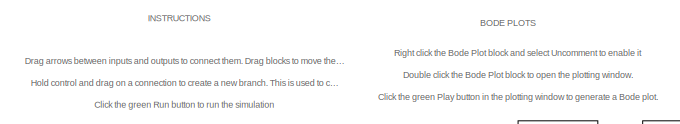
[diagram: root canvas - part 1/4, top left region]
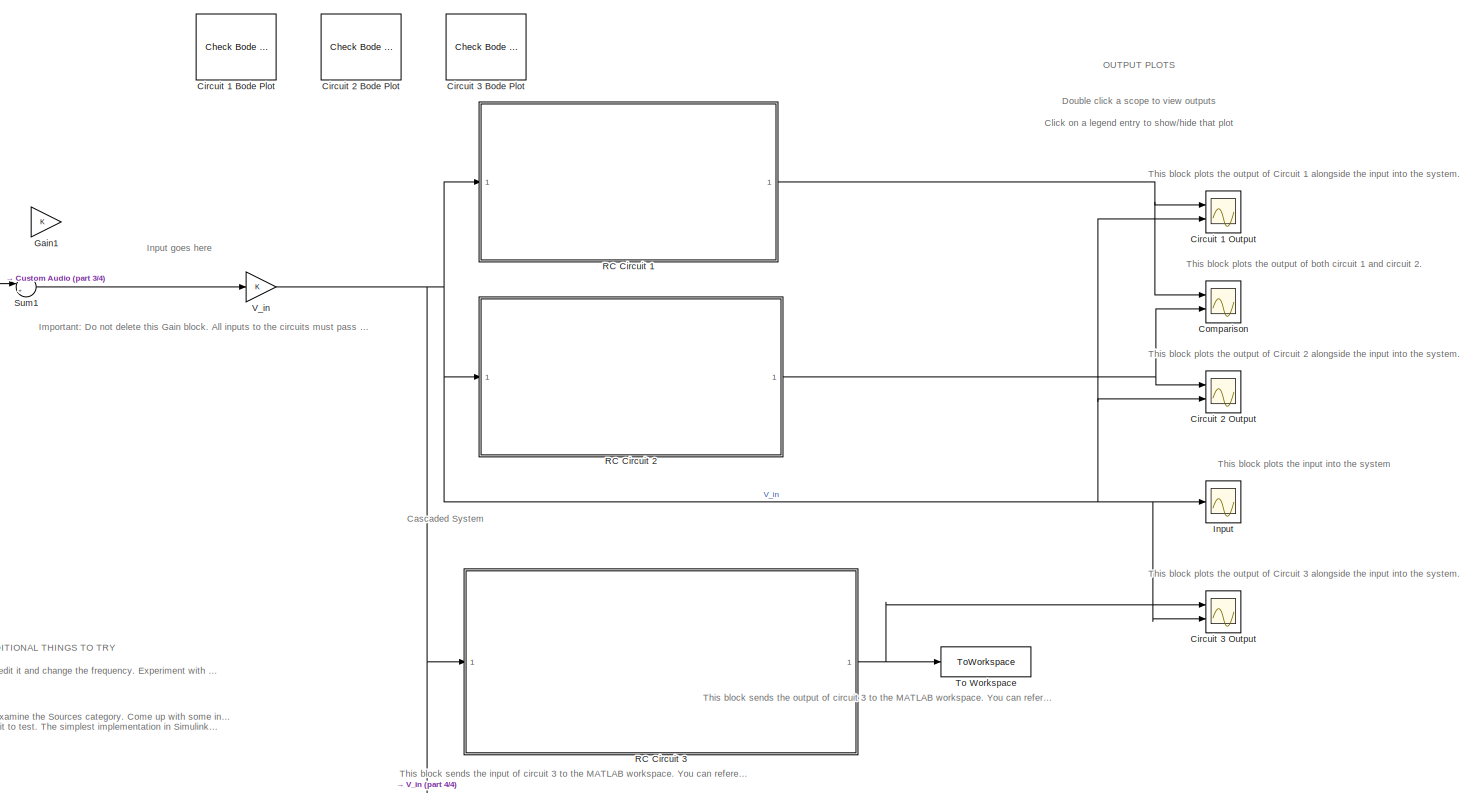
[diagram: root canvas - part 2/4, most of the canvas]
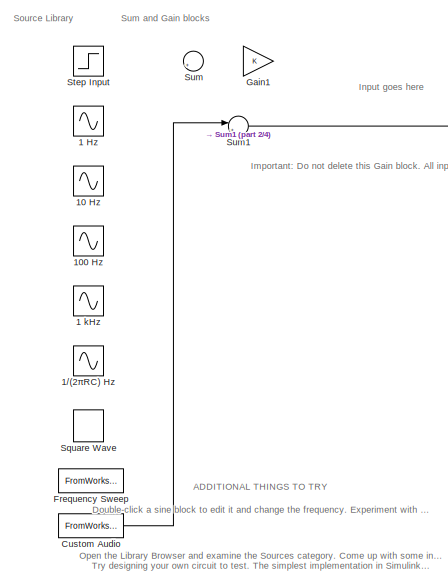
[diagram: root canvas - part 3/4, middle left region]
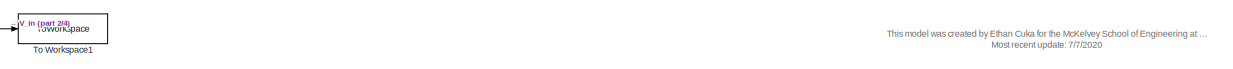
[diagram: root canvas - part 4/4, bottom right region]
MODEL slx_2d2089792859
KIND model
CONFIG AbsTol = auto
CONFIG EnableMultiTasking = off
CONFIG FixedStep = 0
CONFIG InitFcn = run init.m
CONFIG MaxStep = auto
CONFIG MinStep = auto
CONFIG RelTol = 1e-3
CONFIG SampleTimeConstraint = Unconstrained
CONFIG Solver = VariableStepAuto
CONFIG SolverName = VariableStepAuto
CONFIG StartTime = 0.0
CONFIG StopTime = T
BLOCK [Sin] 1 Hz
  Frequency = 2*pi
  Ports = [0, 1]
  SampleTime = 0
BLOCK [Sin] 1 kHz
  Frequency = 2*pi*1000
  Ports = [0, 1]
  SampleTime = 0
BLOCK [Sin] 1//(2πRC) Hz
  Frequency = 1/(R*C)
  Ports = [0, 1]
  SampleTime = 0
BLOCK [Sin] 10 Hz
  Frequency = 2*pi*10
  Ports = [0, 1]
  SampleTime = 0
BLOCK [Sin] 100 Hz
  Frequency = 2*pi*100
  Ports = [0, 1]
  SampleTime = 0
BLOCK [Reference] Circuit 1 Bode Plot  REF=slctrlblks/Model Verification/Check Bode 
Characteristics
  Commented = on
  InstantiateOnLoad = on
  Ports = []
  SourceBlock = slctrlblks/Model Verification/Check Bode \nCharacteristics
  SourceProductBaseCode = SD
  SourceType = Checks_Bode
BLOCK [Scope] Circuit 1 Output
  Floating = off
  NumInputPorts = 2
  Ports = [2]
  ScopeSpecificationString = Simulink.scopes.TimeScopeBlockCfg('CurrentConfiguration', extmgr.ConfigurationSet(extmgr.Configuration('Core','General UI',true),extmgr.Configuration('Core','Source UI',true),extmgr.Configuration('Sources','WiredSimulink',true,'DataLoggingVariableName','ScopeData1'),extmgr.Configuration('Visuals','Time Domain',true,'SerializedDisplays',{struct('MinYLimReal','-1','MaxYLimReal','1','YLabelReal','','...<+1450ch>
BLOCK [Reference] Circuit 2 Bode Plot  REF=slctrlblks/Model Verification/Check Bode 
Characteristics
  Commented = on
  InstantiateOnLoad = on
  Ports = []
  SourceBlock = slctrlblks/Model Verification/Check Bode \nCharacteristics
  SourceProductBaseCode = SD
  SourceType = Checks_Bode
BLOCK [Scope] Circuit 2 Output
  Floating = off
  NumInputPorts = 2
  Ports = [2]
  ScopeSpecificationString = Simulink.scopes.TimeScopeBlockCfg('CurrentConfiguration', extmgr.ConfigurationSet(extmgr.Configuration('Core','General UI',true),extmgr.Configuration('Core','Source UI',true),extmgr.Configuration('Sources','WiredSimulink',true,'DataLoggingVariableName','ScopeData1'),extmgr.Configuration('Visuals','Time Domain',true,'SerializedDisplays',{struct('MinYLimReal','-1','MaxYLimReal','1','YLabelReal','','...<+1450ch>
BLOCK [Reference] Circuit 3 Bode Plot  REF=slctrlblks/Model Verification/Check Bode 
Characteristics
  Commented = on
  InstantiateOnLoad = on
  Ports = []
  SourceBlock = slctrlblks/Model Verification/Check Bode \nCharacteristics
  SourceProductBaseCode = SD
  SourceType = Checks_Bode
BLOCK [Scope] Circuit 3 Output
  Floating = off
  NumInputPorts = 2
  Ports = [2]
  ScopeSpecificationString = Simulink.scopes.TimeScopeBlockCfg('CurrentConfiguration', extmgr.ConfigurationSet(extmgr.Configuration('Core','General UI',true),extmgr.Configuration('Core','Source UI',true),extmgr.Configuration('Sources','WiredSimulink',true,'DataLoggingVariableName','ScopeData2'),extmgr.Configuration('Visuals','Time Domain',true,'SerializedDisplays',{struct('MinYLimReal','-0.11591','MaxYLimReal','0.12574','YLab...<+1470ch>
BLOCK [Scope] Comparison
  Floating = off
  NumInputPorts = 2
  Ports = [2]
  ScopeSpecificationString = Simulink.scopes.TimeScopeBlockCfg('CurrentConfiguration', extmgr.ConfigurationSet(extmgr.Configuration('Core','General UI',true),extmgr.Configuration('Core','Source UI',true),extmgr.Configuration('Sources','WiredSimulink',true,'DataLoggingVariableName','ScopeData2'),extmgr.Configuration('Visuals','Time Domain',true,'SerializedDisplays',{struct('MinYLimReal','-1','MaxYLimReal','1','YLabelReal','','...<+1456ch>
BLOCK [FromWorkspace] Custom Audio
  SampleTime = 1/Fs
  VariableName = audio_timeseries
BLOCK [FromWorkspace] Frequency Sweep
  SampleTime = 1/Fs
  VariableName = chirp_timeseries
BLOCK [Gain] Gain1
BLOCK [Scope] Input
  Floating = off
  NumInputPorts = 1
  Ports = [1]
  ScopeSpecificationString = Simulink.scopes.TimeScopeBlockCfg('CurrentConfiguration', extmgr.ConfigurationSet(extmgr.Configuration('Core','General UI',true),extmgr.Configuration('Core','Source UI',true),extmgr.Configuration('Sources','WiredSimulink',true,'DataLoggingVariableName','ScopeData1'),extmgr.Configuration('Visuals','Time Domain',true,'SerializedDisplays',{struct('MinYLimReal','-0.17429','MaxYLimReal','0.10458','YLab...<+1533ch>
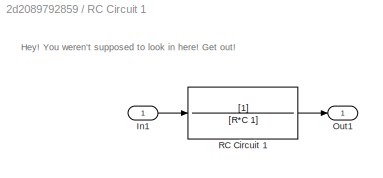
BLOCK [SubSystem] RC Circuit 1
  Ports = [1, 1]
  RequestExecContextInheritance = off
BLOCK [Inport] RC Circuit 1/In1
BLOCK [Outport] RC Circuit 1/Out1
BLOCK [TransferFcn] RC Circuit 1/RC Circuit 1
  Denominator = [R*C 1]
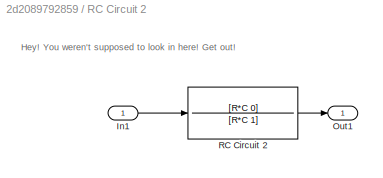
BLOCK [SubSystem] RC Circuit 2
  Ports = [1, 1]
  RequestExecContextInheritance = off
BLOCK [Inport] RC Circuit 2/In1
BLOCK [Outport] RC Circuit 2/Out1
BLOCK [TransferFcn] RC Circuit 2/RC Circuit 2
  Denominator = [R*C 1]
  Numerator = [R*C 0]
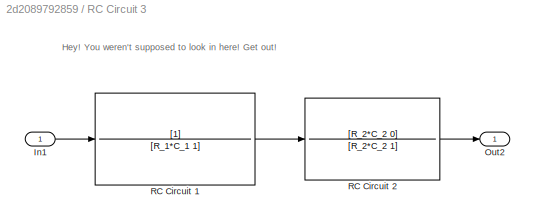
BLOCK [SubSystem] RC Circuit 3
  Ports = [1, 1]
  RequestExecContextInheritance = off
BLOCK [Inport] RC Circuit 3/In1
BLOCK [Outport] RC Circuit 3/Out2
BLOCK [TransferFcn] RC Circuit 3/RC Circuit 1
  Denominator = [R_1*C_1 1]
BLOCK [TransferFcn] RC Circuit 3/RC Circuit 2
  Denominator = [R_2*C_2 1]
  Numerator = [R_2*C_2 0]
BLOCK [DiscretePulseGenerator] Square Wave
  Period = .2
  Ports = [0, 1]
  PulseType = Time based
  PulseWidth = 50
BLOCK [Step] Step Input
  SampleTime = 0
BLOCK [Sum] Sum
  Inputs = |++
  Ports = [2, 1]
BLOCK [Sum] Sum1
  Inputs = |++
  Ports = [2, 1]
BLOCK [ToWorkspace] To Workspace
  FixptAsFi = on
  MaxDataPoints = inf
  Ports = [1]
  SampleTime = -1
  SaveFormat = Timeseries
  VariableName = output
BLOCK [ToWorkspace] To Workspace1
  FixptAsFi = on
  MaxDataPoints = inf
  Ports = [1]
  SampleTime = -1
  SaveFormat = Timeseries
  VariableName = input
BLOCK [Gain] V_in
ANNOTATION (root): This block sends the input of circuit 3 to the MATLAB workspace. You can reference it in MATLAB using " simdata.input ". By default, it is saved as a timeseries. You can use " simdata.input.data" to retrieve the data vector and " simdata.input.time" to retrieve the time vector.
ANNOTATION (root): This block sends the output of circuit 3 to the MATLAB workspace. You can reference it in MATLAB using " simdata .output ". By default, it is saved as a timeseries. You can use " simdata .output.data" to retrieve the data vector and " simdata .output.time" to retrieve the time vector.
ANNOTATION (root): This model was created by Ethan Cuka for the McKelvey School of Engineering at Washington University in St. Louis Most recent update: 7/7/2020
ANNOTATION (root): ADDITIONAL THINGS TO TRY
ANNOTATION (root): BODE PLOTS
ANNOTATION (root): INSTRUCTIONS
ANNOTATION (root): OUTPUT PLOTS
ANNOTATION (root): Important: Do not delete this Gain block. All inputs to the circuits must pass through it or the Bode plots will need to be reconfigured
ANNOTATION (root): Cascaded System
ANNOTATION (root): Double click a scope to view outputs Click on a legend entry to show/hide that plot
ANNOTATION (root): Double-click a sine block to edit it and change the frequency. Experiment with putting very high and very low frequency waves through the sim. Note that using high frequencies can slow down the simulation, as it increases the simulation step size Open the Library Browser and examine the Sources category. Come up with some interesting signals to put through each circuit. Try designing your own circ...<+138ch>
ANNOTATION (root): Drag arrows between inputs and outputs to connect them. Drag blocks to move them. Hold control and drag on a connection to create a new branch. This is used to connect a single input to multiple outputs. Hold control and drag on a block to duplicate it. Click the green Run button to run the simulation Double click on a block to change its properties. Use the sum and gain blocks to add combinations...<+129ch>
ANNOTATION (root): Input goes here
ANNOTATION (root): Right click the Bode Plot block and select Uncomment to enable it Double click the Bode Plot block to open the plotting window. Click the green Play button in the plotting window to generate a Bode plot.
ANNOTATION (root): Source Library
ANNOTATION (root): Sum and Gain blocks
ANNOTATION (root): This block plots the input into the system
ANNOTATION (root): This block plots the output of Circuit 1 alongside the input into the system.
ANNOTATION (root): This block plots the output of Circuit 2 alongside the input into the system.
ANNOTATION (root): This block plots the output of Circuit 3 alongside the input into the system.
ANNOTATION (root): This block plots the output of both circuit 1 and circuit 2.
ANNOTATION RC Circuit 1: Hey! You weren't supposed to look in here! Get out!
ANNOTATION RC Circuit 2: Hey! You weren't supposed to look in here! Get out!
ANNOTATION RC Circuit 3: Hey! You weren't supposed to look in here! Get out!
LINE Custom Audio:1 -> Sum1:1
LINE RC Circuit 1/In1:1 -> RC Circuit 1/RC Circuit 1:1
LINE RC Circuit 1/RC Circuit 1:1 -> RC Circuit 1/Out1:1
NET RC Circuit 1:1 -> Circuit 1 Output:1, Comparison:1
LINE RC Circuit 2/In1:1 -> RC Circuit 2/RC Circuit 2:1
LINE RC Circuit 2/RC Circuit 2:1 -> RC Circuit 2/Out1:1
NET RC Circuit 2:1 -> Circuit 2 Output:1, Comparison:2
LINE RC Circuit 3/In1:1 -> RC Circuit 3/RC Circuit 1:1
LINE RC Circuit 3/RC Circuit 1:1 -> RC Circuit 3/RC Circuit 2:1
LINE RC Circuit 3/RC Circuit 2:1 -> RC Circuit 3/Out2:1
NET RC Circuit 3:1 -> Circuit 3 Output:1, To Workspace:1
LINE Sum1:1 -> V_in:1
NET V_in:1 -> Circuit 1 Output:2, Circuit 2 Output:2, Circuit 3 Output:2, Input:1, RC Circuit 1:1, RC Circuit 2:1, RC Circuit 3:1, To Workspace1:1
note: NET lines group one-source signal fan-out (src -> all destinations, sorted); 1:1 wires keep LINE
